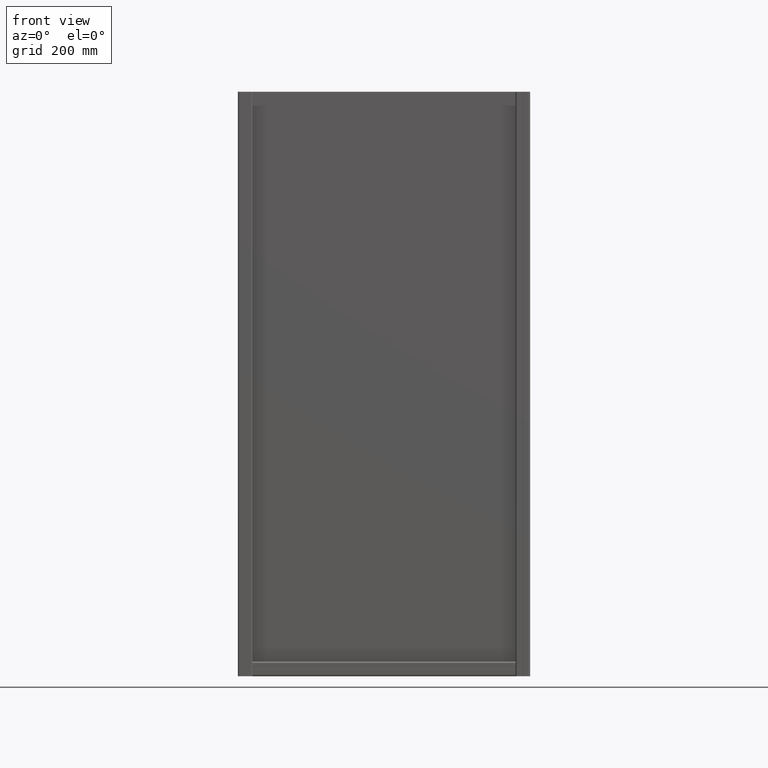
[diagram: clean part render]
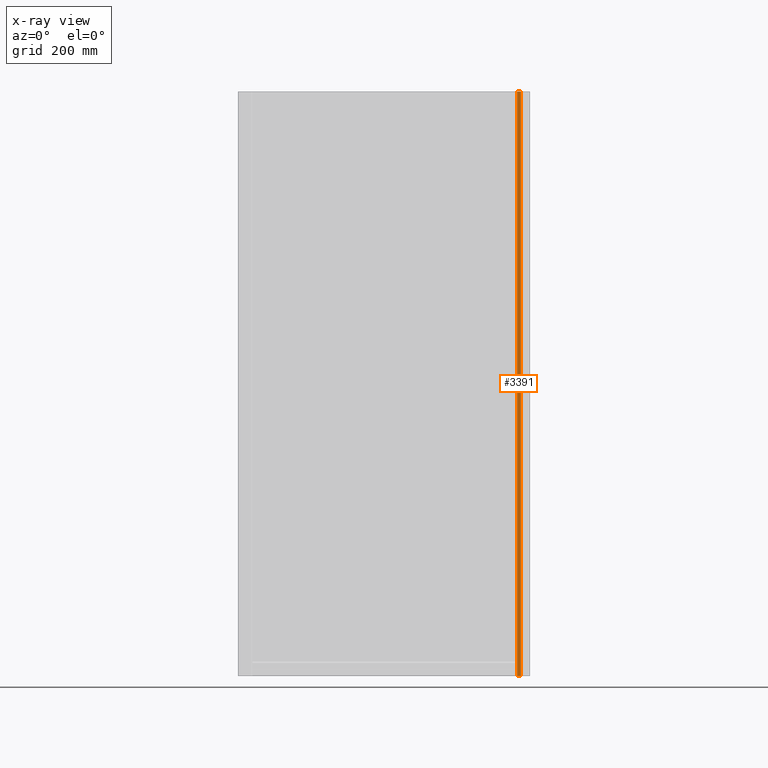
[diagram: x-ray — body ghosted, one internal face saturated and labeled with its STEP entity id]
A machine part, front view, then the same camera in x-ray: the body is ghosted and one INTERNAL B-rep face — a face not visible from any outside direction — is saturated and labeled: STEP entity #3391.
In plain terms, the highlighted planar face has unit normal (0, 1, 0).
Its self-contained STEP definition (entity closure, byte-faithful):
#1 = CARTESIAN_POINT ( 'NONE',  ( -15.50000000000309974, -19.99999999999925038, 600.0000000000000000 ) ) ;
#248 = DIRECTION ( 'NONE',  ( 1.000000000000000000, 5.437690895848939969E-14, 0.000000000000000000 ) ) ;
#506 = VECTOR ( 'NONE', #810, 1000.000000000000000 ) ;
#810 = DIRECTION ( 'NONE',  ( 0.000000000000000000, 0.000000000000000000, 1.000000000000000000 ) ) ;
#1298 = ORIENTED_EDGE ( 'NONE', *, *, #6200, .F. ) ;
#1732 = CARTESIAN_POINT ( 'NONE',  ( -5.100000000000370903, -19.99999999999819877, -1000.000000000000000 ) ) ;
#2398 = VERTEX_POINT ( 'NONE', #4502 ) ;
#3378 = CARTESIAN_POINT ( 'NONE',  ( -5.100000000000360245, -19.99999999999819877, 800.0000000000000000 ) ) ;
#3391 = ADVANCED_FACE ( 'NONE', ( #14067 ), #12817, .F. ) ;
#3814 = CARTESIAN_POINT ( 'NONE',  ( -15.50000000000309974, -19.99999999999900169, 600.0000000000000000 ) ) ;
#3959 = DIRECTION ( 'NONE',  ( 1.000000000000000000, 0.000000000000000000, 0.000000000000000000 ) ) ;
#4479 = CARTESIAN_POINT ( 'NONE',  ( -5.100000000000370903, -19.99999999999819877, -1000.000000000000000 ) ) ;
#4502 = CARTESIAN_POINT ( 'NONE',  ( -15.50000000000309974, -19.99999999999819877, -1000.000000000000000 ) ) ;
#4764 = EDGE_LOOP ( 'NONE', ( #14274, #12105, #1298, #6469 ) ) ;
#5180 = CARTESIAN_POINT ( 'NONE',  ( -5.100000000000370903, -19.99999999999840128, 600.0000000000000000 ) ) ;
#5443 = AXIS2_PLACEMENT_3D ( 'NONE', #7925, #6391, #3959 ) ;
#5557 = VERTEX_POINT ( 'NONE', #4479 ) ;
#6200 = EDGE_CURVE ( 'NONE', #5557, #2398, #14154, .T. ) ;
#6216 = LINE ( 'NONE', #15735, #506 ) ;
#6391 = DIRECTION ( 'NONE',  ( -0.000000000000000000, 1.000000000000000000, 0.000000000000000000 ) ) ;
#6469 = ORIENTED_EDGE ( 'NONE', *, *, #14621, .T. ) ;
#7295 = EDGE_CURVE ( 'NONE', #11296, #9384, #8910, .T. ) ;
#7925 = CARTESIAN_POINT ( 'NONE',  ( -15.50000000000309974, -19.99999999999819877, 800.0000000000000000 ) ) ;
#8910 = LINE ( 'NONE', #3814, #14128 ) ;
#9384 = VERTEX_POINT ( 'NONE', #5180 ) ;
#9686 = DIRECTION ( 'NONE',  ( 0.000000000000000000, 0.000000000000000000, 1.000000000000000000 ) ) ;
#11296 = VERTEX_POINT ( 'NONE', #1 ) ;
#12003 = EDGE_CURVE ( 'NONE', #2398, #11296, #6216, .T. ) ;
#12105 = ORIENTED_EDGE ( 'NONE', *, *, #12003, .F. ) ;
#12702 = LINE ( 'NONE', #3378, #12838 ) ;
#12817 = PLANE ( 'NONE',  #5443 ) ;
#12838 = VECTOR ( 'NONE', #9686, 1000.000000000000000 ) ;
#13355 = DIRECTION ( 'NONE',  ( -1.000000000000000000, 0.000000000000000000, 0.000000000000000000 ) ) ;
#14067 = FACE_OUTER_BOUND ( 'NONE', #4764, .T. ) ;
#14128 = VECTOR ( 'NONE', #248, 1000.000000000000000 ) ;
#14154 = LINE ( 'NONE', #1732, #14441 ) ;
#14274 = ORIENTED_EDGE ( 'NONE', *, *, #7295, .F. ) ;
#14441 = VECTOR ( 'NONE', #13355, 1000.000000000000000 ) ;
#14621 = EDGE_CURVE ( 'NONE', #5557, #9384, #12702, .T. ) ;
#15735 = CARTESIAN_POINT ( 'NONE',  ( -15.50000000000309974, -19.99999999999819877, 800.0000000000000000 ) ) ;